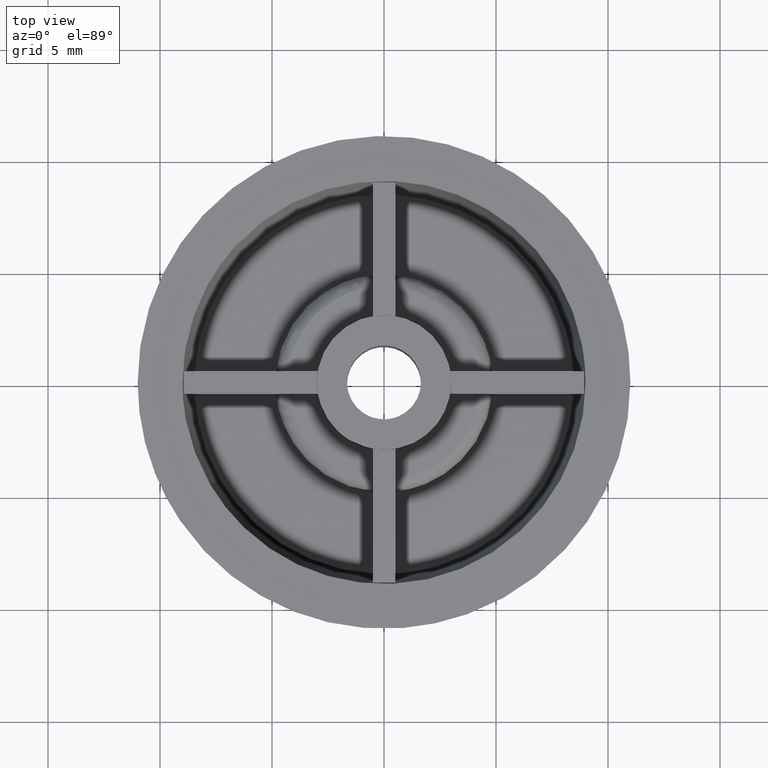
[diagram: clean part render]
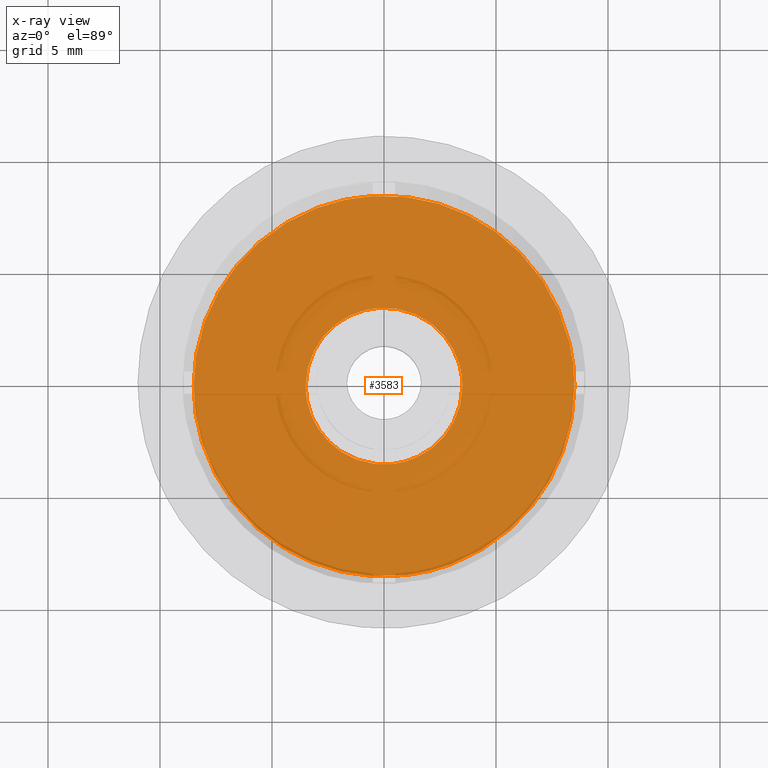
[diagram: x-ray — body ghosted, one internal face saturated and labeled with its STEP entity id]
A machine part, top view, then the same camera in x-ray: the body is ghosted and one INTERNAL B-rep face — a face not visible from any outside direction — is saturated and labeled: STEP entity #3583.
In plain terms, the highlighted face is a freeform B-spline surface patch.
Its self-contained STEP definition (entity closure, byte-faithful):
#3216=CARTESIAN_POINT('',(1.003285287014949,-8.440581652518166,0.199999999999933));
#3217=VERTEX_POINT('',#3216);
#3218=CARTESIAN_POINT('',(-8.500000000000000,0.0,0.199999999999978));
#3219=VERTEX_POINT('',#3218);
#3220=CARTESIAN_POINT('',(1.003285287014949,-8.440581652518166,0.199999999999933));
#3221=CARTESIAN_POINT('',(0.503402133087939,-8.500000000000002,0.199999999999978));
#3222=CARTESIAN_POINT('',(0.0,-8.500000000000000,0.199999999999978));
#3223=CARTESIAN_POINT('',(-8.500000000000002,-8.500000000000002,0.199999999999978));
#3224=CARTESIAN_POINT('',(-8.500000000000000,0.0,0.199999999999978));
#3232=(BOUNDED_CURVE()B_SPLINE_CURVE(2,(#3220,#3221,#3222,#3223,#3224),.UNSPECIFIED.,.F.,.U.)B_SPLINE_CURVE_WITH_KNOTS((3,2,3),(0.229562587796580,0.250000000000000,0.500000000000000),.UNSPECIFIED.)CURVE()GEOMETRIC_REPRESENTATION_ITEM()RATIONAL_B_SPLINE_CURVE((0.956026978183319,0.976056082222092,1.0,0.707106781186548,1.0))REPRESENTATION_ITEM(''));
#3233=EDGE_CURVE('',#3217,#3219,#3232,.T.);
#3274=CARTESIAN_POINT('',(-0.518907171823108,8.484146117730475,0.199999999999938));
#3275=VERTEX_POINT('',#3274);
#3281=CARTESIAN_POINT('',(-8.500000000000000,0.0,0.199999999999978));
#3282=CARTESIAN_POINT('',(-8.500000000000000,7.996006680945280,0.199999999999978));
#3283=CARTESIAN_POINT('',(-0.518907171823108,8.484146117730475,0.199999999999937));
#3291=(BOUNDED_CURVE()B_SPLINE_CURVE(2,(#3281,#3282,#3283),.UNSPECIFIED.,.F.,.U.)B_SPLINE_CURVE_WITH_KNOTS((3,3),(0.500000000000000,0.739333072354044),.UNSPECIFIED.)CURVE()GEOMETRIC_REPRESENTATION_ITEM()RATIONAL_B_SPLINE_CURVE((1.0,0.719603864278844,0.976072277664455))REPRESENTATION_ITEM(''));
#3292=EDGE_CURVE('',#3219,#3275,#3291,.T.);
#3315=CARTESIAN_POINT('',(8.500000000000000,0.0,0.199999999999978));
#3316=VERTEX_POINT('',#3315);
#3317=CARTESIAN_POINT('',(8.500000000000000,0.0,0.199999999999978));
#3318=CARTESIAN_POINT('',(8.499999999999998,-7.549488611527804,0.199999999999978));
#3319=CARTESIAN_POINT('',(1.003285287014949,-8.440581652518166,0.199999999999933));
#3327=(BOUNDED_CURVE()B_SPLINE_CURVE(2,(#3317,#3318,#3319),.UNSPECIFIED.,.F.,.U.)B_SPLINE_CURVE_WITH_KNOTS((3,3),(0.0,0.229562587796580),.UNSPECIFIED.)CURVE()GEOMETRIC_REPRESENTATION_ITEM()RATIONAL_B_SPLINE_CURVE((1.0,0.731050698964456,0.956026978183319))REPRESENTATION_ITEM(''));
#3328=EDGE_CURVE('',#3316,#3217,#3327,.T.);
#3330=CARTESIAN_POINT('',(-0.518907171823108,8.484146117730475,0.199999999999937));
#3331=CARTESIAN_POINT('',(-0.259695773336073,8.499999999999998,0.199999999999978));
#3332=CARTESIAN_POINT('',(0.0,8.500000000000000,0.199999999999978));
#3333=CARTESIAN_POINT('',(8.500000000000002,8.500000000000002,0.199999999999978));
#3334=CARTESIAN_POINT('',(8.500000000000000,0.0,0.199999999999978));
#3342=(BOUNDED_CURVE()B_SPLINE_CURVE(2,(#3330,#3331,#3332,#3333,#3334),.UNSPECIFIED.,.F.,.U.)B_SPLINE_CURVE_WITH_KNOTS((3,2,3),(0.739333072354044,0.750000000000000,1.0),.UNSPECIFIED.)CURVE()GEOMETRIC_REPRESENTATION_ITEM()RATIONAL_B_SPLINE_CURVE((0.976072277664455,0.987502916907703,1.0,0.707106781186548,1.0))REPRESENTATION_ITEM(''));
#3343=EDGE_CURVE('',#3275,#3316,#3342,.T.);
#3402=CARTESIAN_POINT('',(0.413116807997077,-3.475533700446752,0.200000000000008));
#3403=VERTEX_POINT('',#3402);
#3404=CARTESIAN_POINT('',(-3.500000000000000,0.0,0.199999999999978));
#3405=VERTEX_POINT('',#3404);
#3406=CARTESIAN_POINT('',(0.413116807997077,-3.475533700446753,0.200000000000008));
#3407=CARTESIAN_POINT('',(0.207282896202973,-3.500000000000000,0.199999999999978));
#3408=CARTESIAN_POINT('',(0.0,-3.500000000000000,0.199999999999978));
#3409=CARTESIAN_POINT('',(-3.500000000000000,-3.500000000000000,0.199999999999978));
#3410=CARTESIAN_POINT('',(-3.500000000000000,0.0,0.199999999999978));
#3418=(BOUNDED_CURVE()B_SPLINE_CURVE(2,(#3406,#3407,#3408,#3409,#3410),.UNSPECIFIED.,.F.,.U.)B_SPLINE_CURVE_WITH_KNOTS((3,2,3),(0.229562620042158,0.250000000000000,0.500000000000000),.UNSPECIFIED.)CURVE()GEOMETRIC_REPRESENTATION_ITEM()RATIONAL_B_SPLINE_CURVE((0.956027041386051,0.976056120000137,1.0,0.707106781186547,1.0))REPRESENTATION_ITEM(''));
#3419=EDGE_CURVE('',#3403,#3405,#3418,.T.);
#3421=CARTESIAN_POINT('',(-0.213669888387501,3.493471794475586,0.199999999999978));
#3422=VERTEX_POINT('',#3421);
#3423=CARTESIAN_POINT('',(-3.500000000000000,0.0,0.199999999999978));
#3424=CARTESIAN_POINT('',(-3.500000000000000,3.292471234140662,0.199999999999978));
#3425=CARTESIAN_POINT('',(-0.213669888387501,3.493471794475585,0.199999999999978));
#3433=(BOUNDED_CURVE()B_SPLINE_CURVE(2,(#3423,#3424,#3425),.UNSPECIFIED.,.F.,.U.)B_SPLINE_CURVE_WITH_KNOTS((3,3),(0.500000000000000,0.739332962240437),.UNSPECIFIED.)CURVE()GEOMETRIC_REPRESENTATION_ITEM()RATIONAL_B_SPLINE_CURVE((1.0,0.719603993284959,0.976072041669920))REPRESENTATION_ITEM(''));
#3434=EDGE_CURVE('',#3405,#3422,#3433,.T.);
#3501=CARTESIAN_POINT('',(3.500000000000000,0.0,0.199999999999978));
#3502=VERTEX_POINT('',#3501);
#3503=CARTESIAN_POINT('',(3.500000000000000,0.0,0.199999999999978));
#3504=CARTESIAN_POINT('',(3.500000000000000,-3.108613554982028,0.199999999999978));
#3505=CARTESIAN_POINT('',(0.413116807997077,-3.475533700446753,0.200000000000008));
#3513=(BOUNDED_CURVE()B_SPLINE_CURVE(2,(#3503,#3504,#3505),.UNSPECIFIED.,.F.,.U.)B_SPLINE_CURVE_WITH_KNOTS((3,3),(0.0,0.229562620042158),.UNSPECIFIED.)CURVE()GEOMETRIC_REPRESENTATION_ITEM()RATIONAL_B_SPLINE_CURVE((1.0,0.731050661186411,0.956027041386051))REPRESENTATION_ITEM(''));
#3514=EDGE_CURVE('',#3502,#3403,#3513,.T.);
#3548=CARTESIAN_POINT('',(-0.213669888387501,3.493471794475586,0.199999999999978));
#3549=CARTESIAN_POINT('',(-0.106934671560606,3.500000000000000,0.199999999999978));
#3550=CARTESIAN_POINT('',(0.0,3.500000000000000,0.199999999999978));
#3551=CARTESIAN_POINT('',(3.500000000000000,3.500000000000000,0.199999999999978));
#3552=CARTESIAN_POINT('',(3.500000000000000,0.0,0.199999999999978));
#3560=(BOUNDED_CURVE()B_SPLINE_CURVE(2,(#3548,#3549,#3550,#3551,#3552),.UNSPECIFIED.,.F.,.U.)B_SPLINE_CURVE_WITH_KNOTS((3,2,3),(0.739332962240437,0.750000000000000,1.0),.UNSPECIFIED.)CURVE()GEOMETRIC_REPRESENTATION_ITEM()RATIONAL_B_SPLINE_CURVE((0.976072041669920,0.987502787901588,1.0,0.707106781186547,1.0))REPRESENTATION_ITEM(''));
#3561=EDGE_CURVE('',#3422,#3502,#3560,.T.);
#3566=CARTESIAN_POINT('',(-9.349149967050700,-9.348995430536263,0.200000000000000));
#3567=CARTESIAN_POINT('',(9.349150423026234,-9.348995430536263,0.200000000000000));
#3568=CARTESIAN_POINT('',(-9.349149967050700,9.348944361276619,0.200000000000000));
#3569=CARTESIAN_POINT('',(9.349150423026234,9.348944361276619,0.200000000000000));
#3570=B_SPLINE_SURFACE_WITH_KNOTS('',1,1,((#3566,#3568),(#3567,#3569)),.UNSPECIFIED.,.F.,.F.,.U.,(2,2),(2,2),(0.0,18.698300390076930),(0.0,18.697939791812878),.UNSPECIFIED.);
#3571=ORIENTED_EDGE('',*,*,#3328,.T.);
#3572=ORIENTED_EDGE('',*,*,#3233,.T.);
#3573=ORIENTED_EDGE('',*,*,#3292,.T.);
#3574=ORIENTED_EDGE('',*,*,#3343,.T.);
#3575=EDGE_LOOP('',(#3571,#3572,#3573,#3574));
#3576=FACE_OUTER_BOUND('',#3575,.T.);
#3577=ORIENTED_EDGE('',*,*,#3434,.F.);
#3578=ORIENTED_EDGE('',*,*,#3419,.F.);
#3579=ORIENTED_EDGE('',*,*,#3514,.F.);
#3580=ORIENTED_EDGE('',*,*,#3561,.F.);
#3581=EDGE_LOOP('',(#3577,#3578,#3579,#3580));
#3582=FACE_BOUND('',#3581,.T.);
#3583=ADVANCED_FACE('',(#3576,#3582),#3570,.F.);